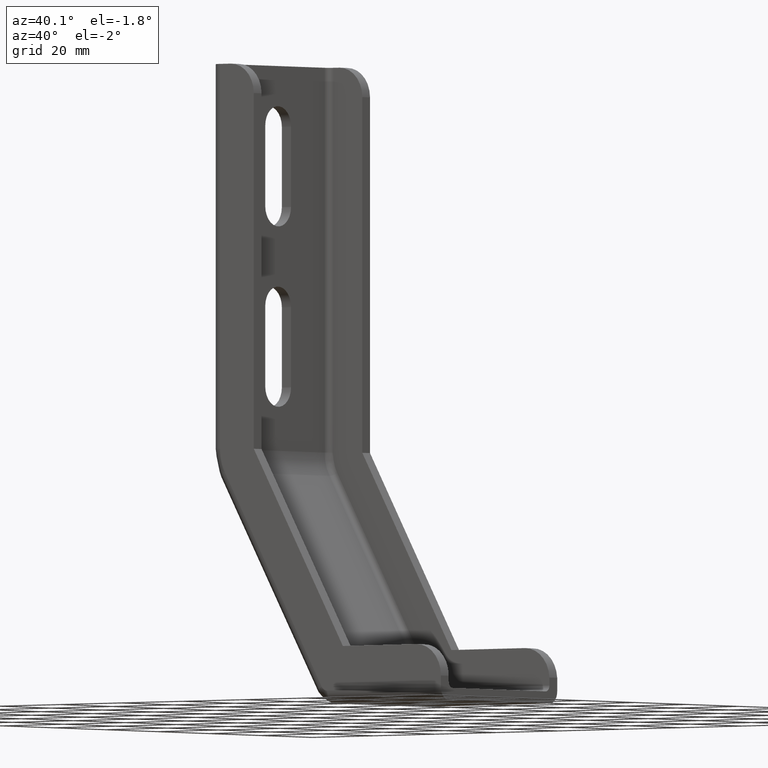
[diagram: clean part render]
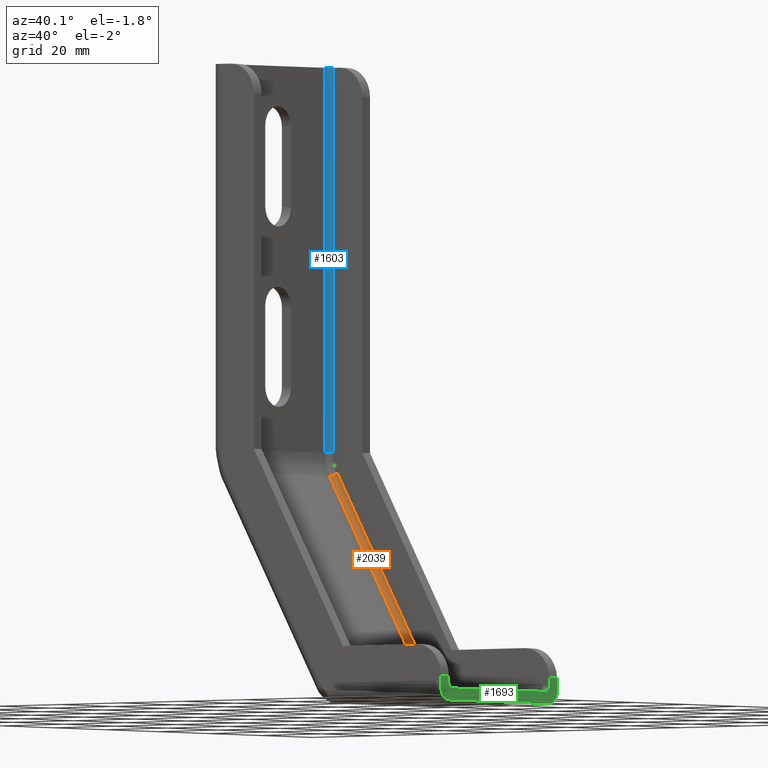
[diagram: same view with three faces highlighted in distinct colors, each labeled with its STEP entity id]
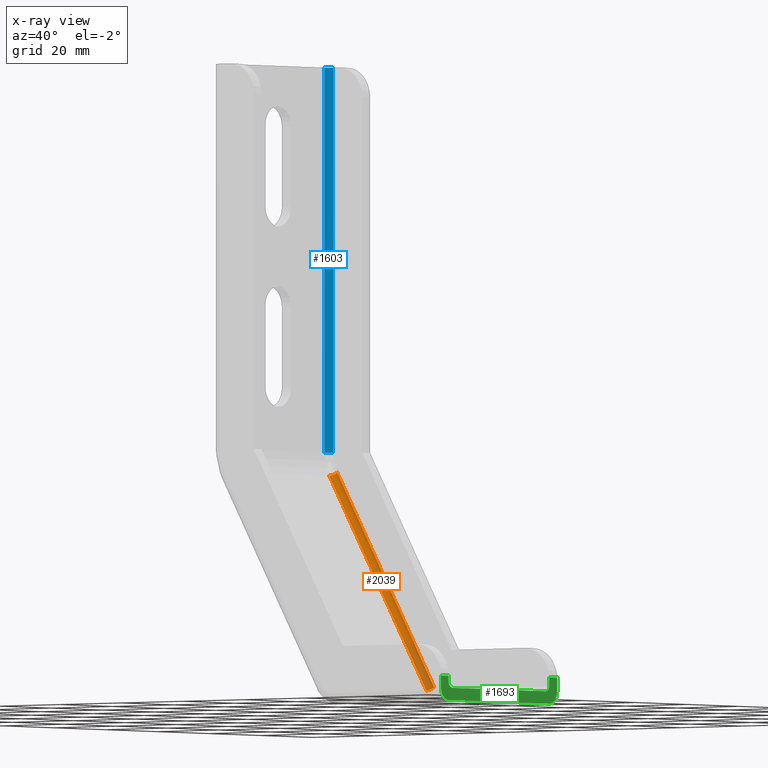
[diagram: x-ray of the same camera — body ghosted, the three highlighted faces saturated]
A machine part, auxiliary view with three faces highlighted in distinct colors.
The next image is the same camera in x-ray (body ghosted, the three faces saturated) — at least one of them is partly hidden behind the body in this view.
Their STEP definitions:

[orange] entity #2039 — the highlighted cylindrical surface (edge-blend (fillet) strip) has radius 1.5 mm, axis along (0.5039, -0, -0.8638).
#1532=CARTESIAN_POINT('',(-48.465012133138771,18.000002482406902,58.182344449930497));
#1533=VERTEX_POINT('',#1532);
#1541=CARTESIAN_POINT('',(-47.169327664325465,19.500002482406902,58.938123357598670));
#1542=VERTEX_POINT('',#1541);
#1543=CARTESIAN_POINT('',(-47.169327664325465,18.000002482406902,58.938123357598677));
#1544=DIRECTION('',(-0.503852605112102,5.289186E-017,0.863789645875515));
#1545=DIRECTION('',(-0.863789645875515,-3.085207E-017,-0.503852605112102));
#1546=AXIS2_PLACEMENT_3D('',#1543,#1544,#1545);
#1547=CIRCLE('',#1546,1.500000000000038);
#1548=EDGE_CURVE('',#1542,#1533,#1547,.T.);
#1911=CARTESIAN_POINT('',(-16.855694213613333,18.000002482406899,3.992287169145128));
#1912=VERTEX_POINT('',#1911);
#1919=CARTESIAN_POINT('',(-48.465012133139226,18.000002482406902,58.182344449929587));
#1920=DIRECTION('',(0.503852605111779,-5.663026E-017,-0.863789645875704));
#1921=VECTOR('',#1920,62.735247568112470);
#1922=LINE('',#1919,#1921);
#1923=EDGE_CURVE('',#1533,#1912,#1922,.T.);
#1997=CARTESIAN_POINT('',(-15.560009744800027,19.500002482406899,4.748066076813301));
#1998=VERTEX_POINT('',#1997);
#1999=CARTESIAN_POINT('',(-47.169327664325920,19.500002482406902,58.938123357597760));
#2000=DIRECTION('',(0.503852605111779,-5.663026E-017,-0.863789645875704));
#2001=VECTOR('',#2000,62.735247568112470);
#2002=LINE('',#1999,#2001);
#2003=EDGE_CURVE('',#1542,#1998,#2002,.T.);
#2022=CARTESIAN_POINT('',(-47.169327664325920,18.000002482406902,58.938123357597760));
#2023=DIRECTION('',(0.503852605112102,-5.289186E-017,-0.863789645875515));
#2024=DIRECTION('',(-0.863789645875515,-3.085207E-017,-0.503852605112102));
#2025=AXIS2_PLACEMENT_3D('',#2022,#2023,#2024);
#2026=CYLINDRICAL_SURFACE('',#2025,1.500000000000038);
#2027=ORIENTED_EDGE('',*,*,#1923,.T.);
#2028=CARTESIAN_POINT('',(-15.560009744779567,18.000002482406899,4.748066076825126));
#2029=DIRECTION('',(-0.503852605112102,5.289186E-017,0.863789645875515));
#2030=DIRECTION('',(-0.863789645875515,-3.085207E-017,-0.503852605112102));
#2031=AXIS2_PLACEMENT_3D('',#2028,#2029,#2030);
#2032=CIRCLE('',#2031,1.500000000000038);
#2033=EDGE_CURVE('',#1998,#1912,#2032,.T.);
#2034=ORIENTED_EDGE('',*,*,#2033,.F.);
#2035=ORIENTED_EDGE('',*,*,#2003,.F.);
#2036=ORIENTED_EDGE('',*,*,#1548,.T.);
#2037=EDGE_LOOP('',(#2027,#2034,#2035,#2036));
#2038=FACE_OUTER_BOUND('',#2037,.T.);
#2039=ADVANCED_FACE('',(#2038),#2026,.F.);

[blue] entity #1603 — the highlighted cylindrical surface (edge-blend (fillet) strip) has radius 1.5 mm, axis along (0, -0, -1).
#1530=CARTESIAN_POINT('',(-49.999900000791058,18.000002482406902,64.033926775111468));
#1531=VERTEX_POINT('',#1530);
#1550=CARTESIAN_POINT('',(-48.499900000791058,19.500002482406902,64.022271418882156));
#1551=VERTEX_POINT('',#1550);
#1559=CARTESIAN_POINT('',(-49.999900000791058,18.000002482406902,64.033926775111468));
#1560=CARTESIAN_POINT('',(-49.999900000791058,18.162822215607552,64.033926775111468));
#1561=CARTESIAN_POINT('',(-49.932918577187593,18.571415847136908,64.033424950211156));
#1562=CARTESIAN_POINT('',(-49.570680512318177,19.135169071944350,64.030692236750838));
#1563=CARTESIAN_POINT('',(-49.012774179996541,19.449141628280362,64.026372828911917));
#1564=CARTESIAN_POINT('',(-48.633853012654981,19.500002482406902,64.023350762921837));
#1565=CARTESIAN_POINT('',(-48.499900000791058,19.500002482406902,64.022271418882156));
#1566=B_SPLINE_CURVE_WITH_KNOTS('',3,(#1559,#1560,#1561,#1562,#1563,#1564,#1565),.UNSPECIFIED.,.F.,.U.,(4,1,1,1,4),(0.0,0.490607264557529,1.221803933294354,1.953024705686421,2.356089404603246),.UNSPECIFIED.);
#1567=EDGE_CURVE('',#1531,#1551,#1566,.T.);
#1572=CARTESIAN_POINT('',(-48.499900000791058,18.000002482406909,159.999679998782090));
#1573=DIRECTION('',(0.0,-6.123234E-017,-1.0));
#1574=DIRECTION('',(-1.0,0.0,0.0));
#1575=AXIS2_PLACEMENT_3D('',#1572,#1573,#1574);
#1576=CYLINDRICAL_SURFACE('',#1575,1.500000000000000);
#1577=CARTESIAN_POINT('',(-49.999900000791058,18.000002482406909,159.999679998782090));
#1578=VERTEX_POINT('',#1577);
#1579=CARTESIAN_POINT('',(-49.999900000791058,18.000002482406909,159.999679998782090));
#1580=DIRECTION('',(0.0,0.0,-1.0));
#1581=VECTOR('',#1580,95.965753223670617);
#1582=LINE('',#1579,#1581);
#1583=EDGE_CURVE('',#1578,#1531,#1582,.T.);
#1584=ORIENTED_EDGE('',*,*,#1583,.T.);
#1585=ORIENTED_EDGE('',*,*,#1567,.T.);
#1586=CARTESIAN_POINT('',(-48.499900000791058,19.500002482406909,159.999679998782090));
#1587=VERTEX_POINT('',#1586);
#1588=CARTESIAN_POINT('',(-48.499900000791058,19.500002482406909,159.999679998782090));
#1589=DIRECTION('',(0.0,0.0,-1.0));
#1590=VECTOR('',#1589,95.977408579899929);
#1591=LINE('',#1588,#1590);
#1592=EDGE_CURVE('',#1587,#1551,#1591,.T.);
#1593=ORIENTED_EDGE('',*,*,#1592,.F.);
#1594=CARTESIAN_POINT('',(-48.499900000791058,18.000002482406909,159.999679998782090));
#1595=DIRECTION('',(0.0,-6.123234E-017,-1.0));
#1596=DIRECTION('',(-1.0,0.0,0.0));
#1597=AXIS2_PLACEMENT_3D('',#1594,#1595,#1596);
#1598=CIRCLE('',#1597,1.500000000000000);
#1599=EDGE_CURVE('',#1578,#1587,#1598,.T.);
#1600=ORIENTED_EDGE('',*,*,#1599,.F.);
#1601=EDGE_LOOP('',(#1584,#1585,#1593,#1600));
#1602=FACE_OUTER_BOUND('',#1601,.T.);
#1603=ADVANCED_FACE('',(#1602),#1576,.F.);

[green] entity #1693 — the highlighted planar face has unit normal (-1, 0, 0).
#7=CARTESIAN_POINT('',(21.999955999912345,-22.499907517413021,5.999971999944139));
#8=VERTEX_POINT('',#7);
#9=CARTESIAN_POINT('',(21.999955999912345,-19.499907517413021,5.999971999944138));
#10=VERTEX_POINT('',#9);
#11=CARTESIAN_POINT('',(21.999955999912345,-22.499907517413021,5.999971999944139));
#12=DIRECTION('',(0.0,1.0,0.0));
#13=VECTOR('',#12,3.0);
#14=LINE('',#11,#13);
#15=EDGE_CURVE('',#8,#10,#14,.T.);
#311=CARTESIAN_POINT('',(21.999955999912345,19.500002482406899,6.499986999977408));
#312=VERTEX_POINT('',#311);
#320=CARTESIAN_POINT('',(21.999955999912345,22.500002482406899,6.499986999977407));
#321=VERTEX_POINT('',#320);
#322=CARTESIAN_POINT('',(21.999955999912345,22.500002482406899,6.499986999977407));
#323=DIRECTION('',(0.0,-1.0,0.0));
#324=VECTOR('',#323,3.0);
#325=LINE('',#322,#324);
#326=EDGE_CURVE('',#321,#312,#325,.T.);
#778=CARTESIAN_POINT('',(21.999955999912345,-19.499907517413021,1.194025E-015));
#779=VERTEX_POINT('',#778);
#786=CARTESIAN_POINT('',(21.999955999912345,-22.499907517413021,3.000000000000001));
#787=VERTEX_POINT('',#786);
#788=CARTESIAN_POINT('',(21.999955999912345,-19.499907517413021,3.000000000000001));
#789=DIRECTION('',(1.0,0.0,0.0));
#790=DIRECTION('',(0.0,-1.0,6.123234E-017));
#791=AXIS2_PLACEMENT_3D('',#788,#789,#790);
#792=CIRCLE('',#791,3.0);
#793=EDGE_CURVE('',#787,#779,#792,.T.);
#811=CARTESIAN_POINT('',(21.999955999912345,22.500002482406899,2.999999999999999));
#812=VERTEX_POINT('',#811);
#819=CARTESIAN_POINT('',(21.999955999912345,19.500002482406899,-1.194031E-015));
#820=VERTEX_POINT('',#819);
#821=CARTESIAN_POINT('',(21.999955999912345,19.500002482406899,2.999999999999999));
#822=DIRECTION('',(-1.0,0.0,0.0));
#823=DIRECTION('',(0.0,1.0,-6.123234E-017));
#824=AXIS2_PLACEMENT_3D('',#821,#822,#823);
#825=CIRCLE('',#824,3.0);
#826=EDGE_CURVE('',#812,#820,#825,.T.);
#852=CARTESIAN_POINT('',(21.999955999912345,19.500002482406899,-1.194031E-015));
#853=DIRECTION('',(0.0,-1.0,0.0));
#854=VECTOR('',#853,38.999909999819920);
#855=LINE('',#852,#854);
#856=EDGE_CURVE('',#820,#779,#855,.T.);
#920=CARTESIAN_POINT('',(21.999955999912345,-22.499907517413021,5.999971999944139));
#921=DIRECTION('',(0.0,0.0,-1.0));
#922=VECTOR('',#921,2.999971999944137);
#923=LINE('',#920,#922);
#924=EDGE_CURVE('',#8,#787,#923,.T.);
#1053=CARTESIAN_POINT('',(21.999955999912345,22.500002482406899,6.499986999977407));
#1054=DIRECTION('',(0.0,0.0,-1.0));
#1055=VECTOR('',#1054,3.499986999977409);
#1056=LINE('',#1053,#1055);
#1057=EDGE_CURVE('',#321,#812,#1056,.T.);
#1639=CARTESIAN_POINT('',(21.999955999912345,22.500488388544227,6.500429746394728));
#1640=DIRECTION('',(-1.0,0.0,0.0));
#1641=DIRECTION('',(0.0,0.0,-1.0));
#1642=AXIS2_PLACEMENT_3D('',#1639,#1640,#1641);
#1643=PLANE('',#1642);
#1644=ORIENTED_EDGE('',*,*,#924,.T.);
#1645=ORIENTED_EDGE('',*,*,#793,.T.);
#1646=ORIENTED_EDGE('',*,*,#856,.F.);
#1647=ORIENTED_EDGE('',*,*,#826,.F.);
#1648=ORIENTED_EDGE('',*,*,#1057,.F.);
#1649=ORIENTED_EDGE('',*,*,#326,.T.);
#1650=CARTESIAN_POINT('',(21.999955999912345,19.500002482406899,4.499993999987964));
#1651=VERTEX_POINT('',#1650);
#1652=CARTESIAN_POINT('',(21.999955999912345,19.500002482406899,6.499986999977408));
#1653=DIRECTION('',(0.0,0.0,-1.0));
#1654=VECTOR('',#1653,1.999992999989445);
#1655=LINE('',#1652,#1654);
#1656=EDGE_CURVE('',#312,#1651,#1655,.T.);
#1657=ORIENTED_EDGE('',*,*,#1656,.T.);
#1658=CARTESIAN_POINT('',(21.999955999912345,18.000002482406899,2.999993999987964));
#1659=VERTEX_POINT('',#1658);
#1660=CARTESIAN_POINT('',(21.999955999912345,18.000002482406899,4.499993999987964));
#1661=DIRECTION('',(-1.0,0.0,0.0));
#1662=DIRECTION('',(0.0,1.0,-6.123234E-017));
#1663=AXIS2_PLACEMENT_3D('',#1660,#1661,#1662);
#1664=CIRCLE('',#1663,1.500000000000000);
#1665=EDGE_CURVE('',#1651,#1659,#1664,.T.);
#1666=ORIENTED_EDGE('',*,*,#1665,.T.);
#1667=CARTESIAN_POINT('',(21.999955999912345,-17.999907517413021,2.999993999987965));
#1668=VERTEX_POINT('',#1667);
#1669=CARTESIAN_POINT('',(21.999955999912345,18.000002482406899,2.999993999987964));
#1670=DIRECTION('',(0.0,-1.0,0.0));
#1671=VECTOR('',#1670,35.999909999819920);
#1672=LINE('',#1669,#1671);
#1673=EDGE_CURVE('',#1659,#1668,#1672,.T.);
#1674=ORIENTED_EDGE('',*,*,#1673,.T.);
#1675=CARTESIAN_POINT('',(21.999955999912345,-19.499907517413021,4.499993999987965));
#1676=VERTEX_POINT('',#1675);
#1677=CARTESIAN_POINT('',(21.999955999912345,-17.999907517413021,4.499993999987965));
#1678=DIRECTION('',(1.0,0.0,0.0));
#1679=DIRECTION('',(0.0,-1.0,6.123234E-017));
#1680=AXIS2_PLACEMENT_3D('',#1677,#1678,#1679);
#1681=CIRCLE('',#1680,1.500000000000000);
#1682=EDGE_CURVE('',#1676,#1668,#1681,.T.);
#1683=ORIENTED_EDGE('',*,*,#1682,.F.);
#1684=CARTESIAN_POINT('',(21.999955999912345,-19.499907517413021,4.499993999987965));
#1685=DIRECTION('',(0.0,0.0,1.0));
#1686=VECTOR('',#1685,1.499977999956172);
#1687=LINE('',#1684,#1686);
#1688=EDGE_CURVE('',#1676,#10,#1687,.T.);
#1689=ORIENTED_EDGE('',*,*,#1688,.T.);
#1690=ORIENTED_EDGE('',*,*,#15,.F.);
#1691=EDGE_LOOP('',(#1644,#1645,#1646,#1647,#1648,#1649,#1657,#1666,#1674,#1683,#1689,#1690));
#1692=FACE_OUTER_BOUND('',#1691,.T.);
#1693=ADVANCED_FACE('',(#1692),#1643,.F.);